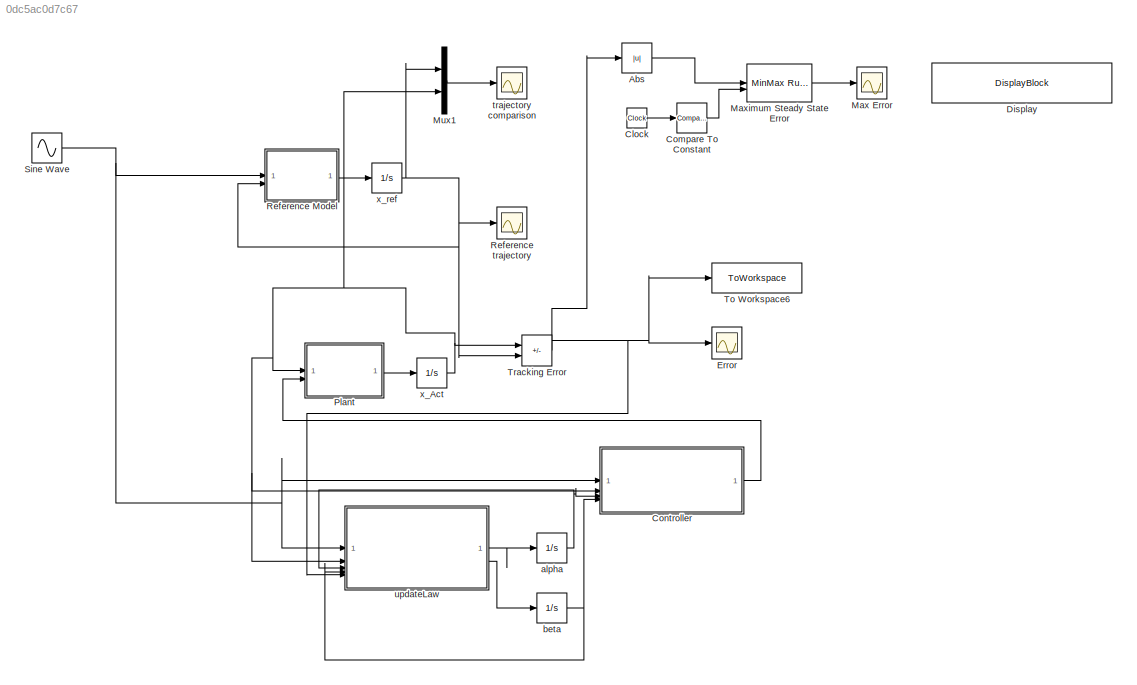
MODEL slx_0dc5ac0d7c67
KIND model
CONFIG AbsTol = auto
CONFIG EnableMultiTasking = off
CONFIG FixedStep = auto
CONFIG MaxStep = auto
CONFIG MinStep = auto
CONFIG RelTol = 1e-3
CONFIG SampleTimeConstraint = Unconstrained
CONFIG SolverName = VariableStepAuto
CONFIG StartTime = 0.0
CONFIG StopTime = 10.0
BLOCK [Reference]  Maximum Steady State Error  REF=simulink/Math
Operations/MinMax
Running
Resettable
  SourceBlock = simulink/Math\nOperations/MinMax\nRunning\nResettable
  SourceType = MinMax Running Resettable
BLOCK [Abs] Abs
  SaturateOnIntegerOverflow = off
BLOCK [Clock] Clock
  DisplayTime = on
BLOCK [Reference] Compare To Constant  REF=simulink/Logic and Bit
Operations/Compare
To Constant
  SourceBlock = simulink/Logic and Bit\nOperations/Compare\nTo Constant
  SourceType = Compare To Constant
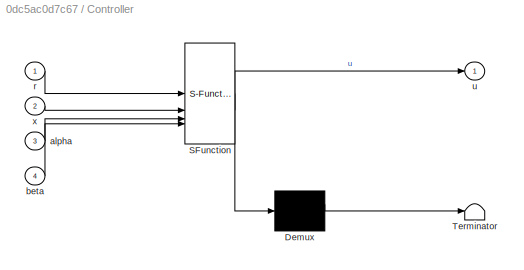
BLOCK [SubSystem] Controller
  ErrorFcn = Stateflow.Translate.translate
  PermitHierarchicalResolution = ExplicitOnly
  SFBlockType = MATLAB Function
  TreatAsAtomicUnit = on
BLOCK [Demux] Controller/ Demux 
  Outputs = 1
BLOCK [S-Function] Controller/ SFunction 
  EnableBusSupport = on
  FunctionName = sf_sfun
  PortCounts = [4 2]
  SFcnIsStateOwnerBlock = off
  SFunctionDeploymentMode = off
  Tag = Stateflow S-Function 4
BLOCK [Terminator] Controller/ Terminator 
BLOCK [Inport] Controller/alpha
  Port = 3
BLOCK [Inport] Controller/beta
  Port = 4
BLOCK [Inport] Controller/r
BLOCK [Outport] Controller/u
BLOCK [Inport] Controller/x
  Port = 2
BLOCK [DisplayBlock] Display
  Format = shortE
  LabelPosition = Hide
  Transparency = 1
BLOCK [Scope] Error
  Floating = off
  NumInputPorts = 1
  ScopeSpecificationString = Simulink.scopes.TimeScopeBlockCfg('CurrentConfiguration', extmgr.ConfigurationSet(extmgr.Configuration('Core','General UI',true,'FigureColor',[1 1 1]),extmgr.Configuration('Core','Source UI',true),extmgr.Configuration('Sources','WiredSimulink',true,'DataLoggingVariableName','ScopeData4'),extmgr.Configuration('Visuals','Time Domain',true,'SerializedDisplays',{struct('MinYLimReal','0.80467','MaxYLim...<+1953ch>
BLOCK [Scope] Max Error
  Floating = off
  NumInputPorts = 1
  ScopeSpecificationString = Simulink.scopes.TimeScopeBlockCfg('CurrentConfiguration', extmgr.ConfigurationSet(extmgr.Configuration('Core','General UI',true),extmgr.Configuration('Core','Source UI',true),extmgr.Configuration('Sources','WiredSimulink',true,'DataLoggingVariableName','ScopeData3'),extmgr.Configuration('Visuals','Time Domain',true,'SerializedDisplays',{struct('MinYLimReal','-0.33367','MaxYLimReal','3.00306','YLab...<+1417ch>
BLOCK [Mux] Mux1
  DisplayOption = bar
  Inputs = 2
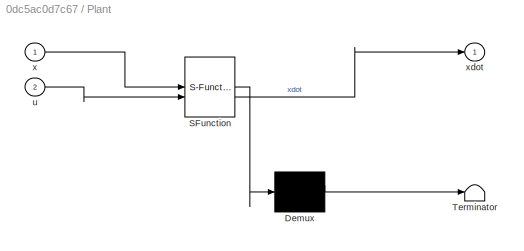
BLOCK [SubSystem] Plant
  ErrorFcn = Stateflow.Translate.translate
  PermitHierarchicalResolution = ExplicitOnly
  SFBlockType = MATLAB Function
  TreatAsAtomicUnit = on
BLOCK [Demux] Plant/ Demux 
  Outputs = 1
BLOCK [S-Function] Plant/ SFunction 
  EnableBusSupport = on
  FunctionName = sf_sfun
  Parameters = a_plant,b_plant
  PortCounts = [2 2]
  SFcnIsStateOwnerBlock = off
  SFunctionDeploymentMode = off
  Tag = Stateflow S-Function 2
BLOCK [Terminator] Plant/ Terminator 
BLOCK [Inport] Plant/u
  Port = 2
BLOCK [Inport] Plant/x
BLOCK [Outport] Plant/xdot
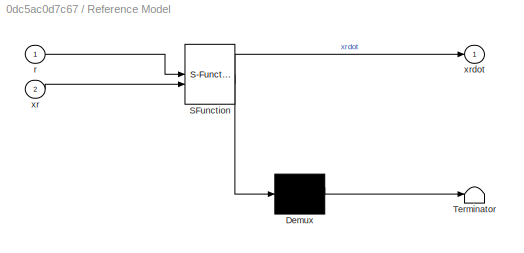
BLOCK [SubSystem] Reference Model
  ErrorFcn = Stateflow.Translate.translate
  PermitHierarchicalResolution = ExplicitOnly
  SFBlockType = MATLAB Function
  TreatAsAtomicUnit = on
BLOCK [Demux] Reference Model/ Demux 
  Outputs = 1
BLOCK [S-Function] Reference Model/ SFunction 
  EnableBusSupport = on
  FunctionName = sf_sfun
  Parameters = ar,br
  PortCounts = [2 2]
  SFcnIsStateOwnerBlock = off
  SFunctionDeploymentMode = off
  Tag = Stateflow S-Function 1
BLOCK [Terminator] Reference Model/ Terminator 
BLOCK [Inport] Reference Model/r
BLOCK [Inport] Reference Model/xr
  Port = 2
BLOCK [Outport] Reference Model/xrdot
BLOCK [Scope] Reference trajectory
  Floating = off
  NumInputPorts = 1
  ScopeSpecificationString = Simulink.scopes.TimeScopeBlockCfg('CurrentConfiguration', extmgr.ConfigurationSet(extmgr.Configuration('Core','General UI',true,'FigureColor',[1 1 1]),extmgr.Configuration('Core','Source UI',true),extmgr.Configuration('Sources','WiredSimulink',true,'DataLoggingVariableName','ScopeData5'),extmgr.Configuration('Visuals','Time Domain',true,'SerializedDisplays',{struct('MinYLimReal','-12.43782','MaxYL...<+1964ch>
BLOCK [Sin] Sine Wave
  Amplitude = 10
  Frequency = 2
  SampleTime = 0
BLOCK [ToWorkspace] To Workspace6
  FixptAsFi = on
  MaxDataPoints = inf
  SampleTime = -1
  SaveFormat = Timeseries
  VariableName = error
BLOCK [Sum] Tracking Error
  IconShape = rectangular
  Inputs = +-
BLOCK [Integrator] alpha
  InitialCondition = alpha0
BLOCK [Integrator] beta
  InitialCondition = beta0
BLOCK [Scope] trajectory comparison
  Floating = off
  NumInputPorts = 1
  ScopeSpecificationString = Simulink.scopes.TimeScopeBlockCfg('CurrentConfiguration', extmgr.ConfigurationSet(extmgr.Configuration('Core','General UI',true,'FigureColor',[1 1 1]),extmgr.Configuration('Core','Source UI',true),extmgr.Configuration('Sources','WiredSimulink',true,'DataLoggingVariableName','ScopeData6'),extmgr.Configuration('Visuals','Time Domain',true,'SerializedDisplays',{struct('MinYLimReal','-12.94159','MaxYL...<+1985ch>
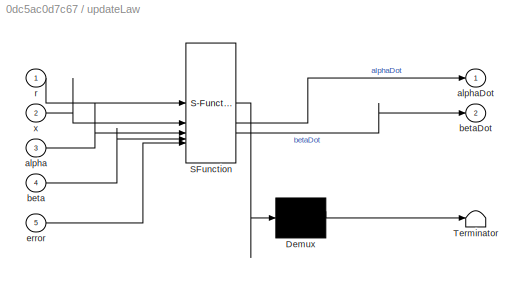
BLOCK [SubSystem] updateLaw
  ErrorFcn = Stateflow.Translate.translate
  PermitHierarchicalResolution = ExplicitOnly
  SFBlockType = MATLAB Function
  TreatAsAtomicUnit = on
BLOCK [Demux] updateLaw/ Demux 
  Outputs = 1
BLOCK [S-Function] updateLaw/ SFunction 
  EnableBusSupport = on
  FunctionName = sf_sfun
  Parameters = ga,gb,sigma
  PortCounts = [5 3]
  SFcnIsStateOwnerBlock = off
  SFunctionDeploymentMode = off
  Tag = Stateflow S-Function 3
BLOCK [Terminator] updateLaw/ Terminator 
BLOCK [Inport] updateLaw/alpha
  Port = 3
BLOCK [Outport] updateLaw/alphaDot
BLOCK [Inport] updateLaw/beta
  Port = 4
BLOCK [Outport] updateLaw/betaDot
  Port = 2
BLOCK [Inport] updateLaw/error
  Port = 5
BLOCK [Inport] updateLaw/r
BLOCK [Inport] updateLaw/x
  Port = 2
BLOCK [Integrator] x_Act
  InitialCondition = x0
BLOCK [Integrator] x_ref
  InitialCondition = xr0
LINE  Maximum Steady State Error:1 -> Max Error:1
LINE Abs:1 ->  Maximum Steady State Error:1
LINE Clock:1 -> Compare To Constant:1
LINE Compare To Constant:1 ->  Maximum Steady State Error:2
LINE Controller:1 -> Plant:2
LINE Mux1:1 -> trajectory comparison:1
LINE Plant:1 -> x_Act:1
LINE Reference Model:1 -> x_ref:1
NET Sine Wave:1 -> Controller:1, Reference Model:1, updateLaw:1
NET Tracking Error:1 -> Abs:1, Error:1, To Workspace6:1, updateLaw:5
NET alpha:1 -> Controller:3, updateLaw:3
NET beta:1 -> Controller:4, updateLaw:4
LINE updateLaw:1 -> alpha:1
LINE updateLaw:2 -> beta:1
NET x_Act:1 -> Controller:2, Mux1:2, Plant:1, Tracking Error:1, updateLaw:2
NET x_ref:1 -> Mux1:1, Reference Model:2, Reference trajectory:1, Tracking Error:2
note: NET lines group one-source signal fan-out (src -> all destinations, sorted); 1:1 wires keep LINE
CHART Reference Model states=1 transitions=1
  STATE_LABEL 'eML_blk_kernel()'
  STATE_LABEL 'SCRIPT:\nfunction xrdot = reference(r,xr,ar, br)\n\nxrdot = ar*xr+br*r;\n'
CHART Plant states=1 transitions=1
  STATE_LABEL 'eML_blk_kernel()'
  STATE_LABEL 'SCRIPT:\nfunction xdot = plant(x,u,a_plant, b_plant)\nf = @(x) -x^3+10*tanh(x);\nxdot = a_plant*x+b_plant*(u+f(x));\n\n\n'
CHART updateLaw states=1 transitions=1
  STATE_LABEL 'eML_blk_kernel()'
  STATE_LABEL 'SCRIPT:\nfunction [alphaDot,betaDot]= evo_law(ga, gb,  sigma, r, x, alpha, beta, error)\n%% Classic Case\nalphaDot=-ga*x*error-sigma*alpha;\nbetaDot=-gb*r*error-sigma*beta;\n\n\n'
CHART Controller states=1 transitions=1
  STATE_LABEL 'eML_blk_kernel()'
  STATE_LABEL 'SCRIPT:\nfunction u = controller(r, x,alpha,beta)\n\n% Classic\nu = alpha*x+beta*r;\n\n\n'
CHART  states=0 transitions=0
CHART  states=0 transitions=0
CHART  states=0 transitions=0
CHART  states=0 transitions=0
